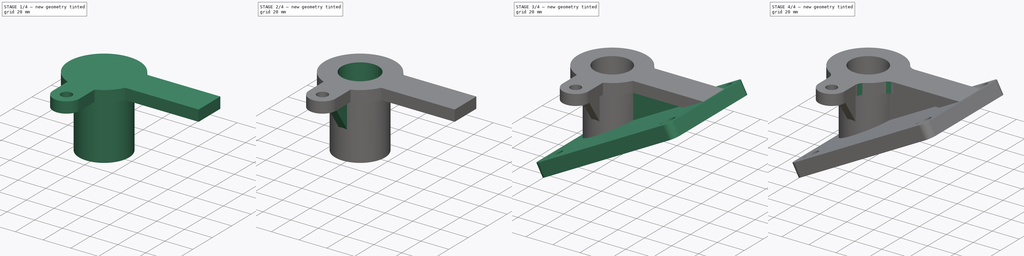
[diagram: build sequence overview — one tinted view per stage of 4, left to right]
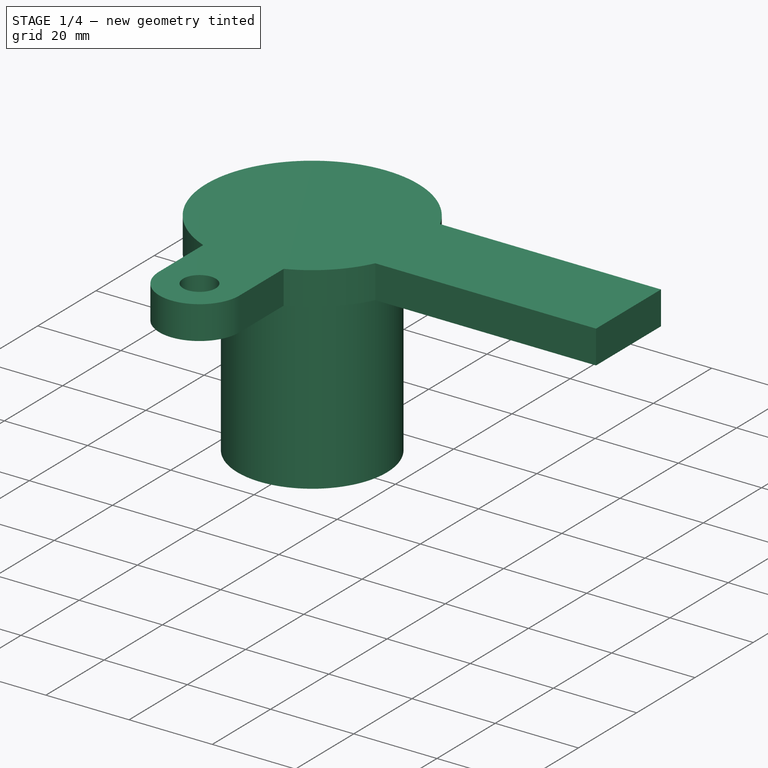
[diagram: stage 1 of 4 — iso view after this stage's code; geometry added in this stage tinted green]
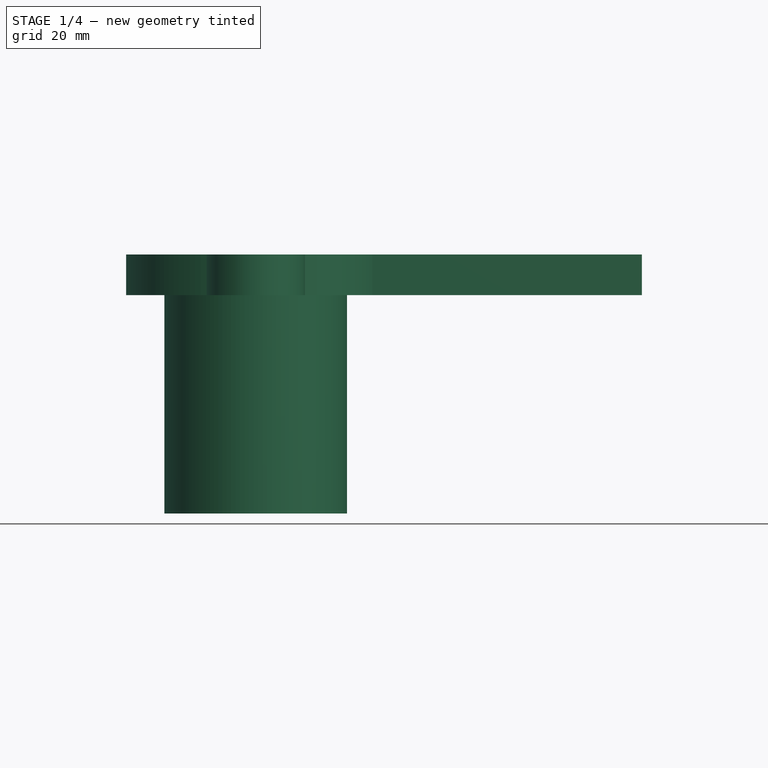
[diagram: stage 1 of 4 — front view after this stage's code; geometry added in this stage tinted green]
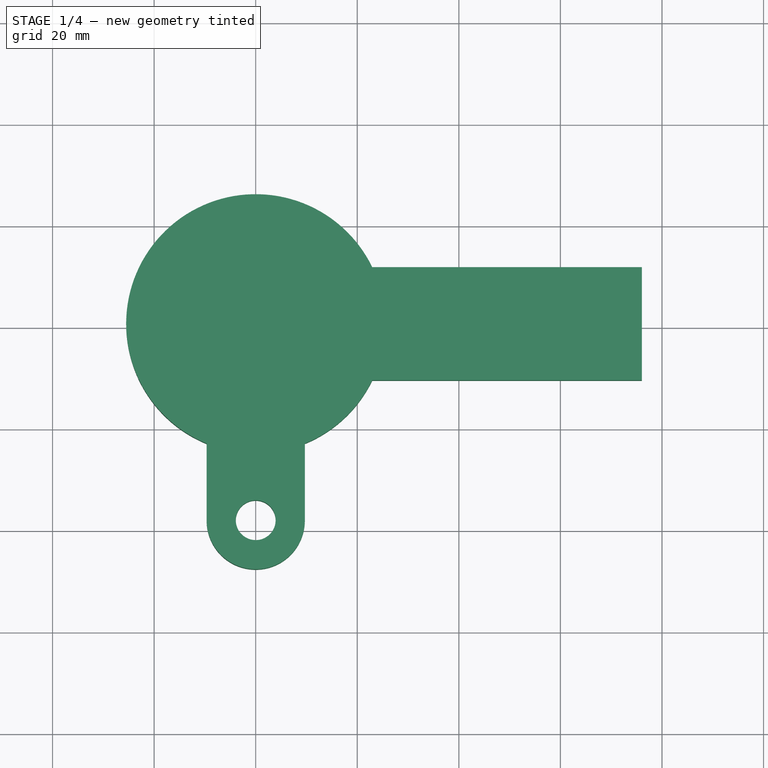
[diagram: stage 1 of 4 — top view after this stage's code; geometry added in this stage tinted green]
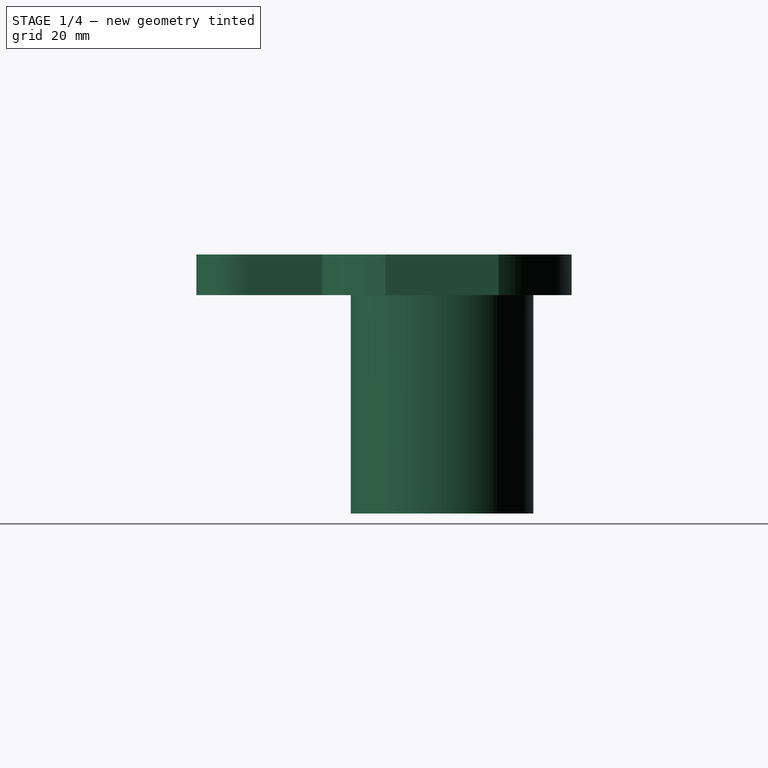
[diagram: stage 1 of 4 — right view after this stage's code; geometry added in this stage tinted green]
FCSTD DOCUMENT  (FreeCAD 0.21R33771 (Git))
Label: ex58
License: All rights reserved
LicenseURL: https://en.wikipedia.org/wiki/All_rights_reserved
objects: Sketcher::SketchObject×7, PartDesign::Pad×5, PartDesign::Pocket×3, PartDesign::Fillet×1, PartDesign::Body×1
note: 26 computed .brp shape members not serialized (recipe doc carries the construction recipe); baked Part::Feature solids carry a one-line shape summary decoded from their .brp

FEATURE [Sketcher::SketchObject] Sketch
  FullyConstrained = false
  MapMode = 5
  Support = -> [XY_Plane]
  sketch-geometry (10):
    g0: ArcOfCircle CenterX=0 CenterY=0 CenterZ=0 NormalX=0 NormalY=0 NormalZ=1 AngleXU=0 Radius=25.5107 StartAngle=0.452188 EndAngle=4.32346
    g1: ArcOfCircle CenterX=0 CenterY=-38.6943 CenterZ=0 NormalX=0 NormalY=0 NormalZ=1 AngleXU=0 Radius=9.67357 StartAngle=3.14159 EndAngle=6.28319
    g2: LineSegment StartX=9.67357 StartY=-38.6943 StartZ=0 EndX=9.67357 EndY=-23.6054 EndZ=0
    g3: Circle CenterX=0 CenterY=-38.6943 CenterZ=0 NormalX=0 NormalY=0 NormalZ=1 AngleXU=0 Radius=3.92073
    g4: LineSegment StartX=76.035 StartY=11.1465 StartZ=0 EndX=76.035 EndY=-11.1465 EndZ=0
    g5: LineSegment StartX=76.035 StartY=-11.1465 StartZ=0 EndX=22.9467 EndY=-11.1465 EndZ=0
    g6: GeomPoint X=0 Y=0 Z=0
    g7: LineSegment StartX=22.9467 StartY=11.1465 StartZ=0 EndX=76.035 EndY=11.1465 EndZ=0
    g8: ArcOfCircle CenterX=0 CenterY=0 CenterZ=0 NormalX=0 NormalY=0 NormalZ=1 AngleXU=0 Radius=25.5107 StartAngle=5.10132 EndAngle=5.831
    g9: LineSegment StartX=-9.67357 StartY=-23.6054 StartZ=0 EndX=-9.67357 EndY=-38.6943 EndZ=0
  constraints (16):
    c: Coincident(g0,g-1)
    c: Coincident(g9,g1) = -1.5708
    c: Tangent(g1,g2) = -1.5708
    c: PointOnObject(g1,g-2)
    c: Coincident(g3,g1)
    c: Coincident(g7,g4)
    c: Coincident(g4,g5)
    c: Horizontal(g5)
    c: Vertical(g4)
    c: Coincident(g6,g0)
    c: Coincident(g0,g7)
    c: Coincident(g5,g8)
    c: Equal(g0,g8)
    c: Coincident(g8,g2)
    c: Coincident(g0,g8)
    c: Coincident(g9,g0)
FEATURE [PartDesign::Pad] Pad
  Direction = (0,0,1)
  Length = 8
  Length2 = 10
  Profile = -> Sketch
  ReferenceAxis = -> Sketch [N_Axis]
  Type = 0
FEATURE [Sketcher::SketchObject] Sketch001
  FullyConstrained = false
  MapMode = 5
  Support = -> [XY_Plane]
  sketch-geometry (2):
    g0: GeomPoint X=0 Y=0 Z=0
    g1: Circle CenterX=0 CenterY=0 CenterZ=0 NormalX=0 NormalY=0 NormalZ=1 AngleXU=0 Radius=17.9846
FEATURE [PartDesign::Pad] Pad001
  BaseFeature = -> Pad
  Direction = (0,0,1)
  Length = 43
  Length2 = 10
  Profile = -> Sketch001
  ReferenceAxis = -> Sketch001 [N_Axis]
  Reversed = true
  Type = 0
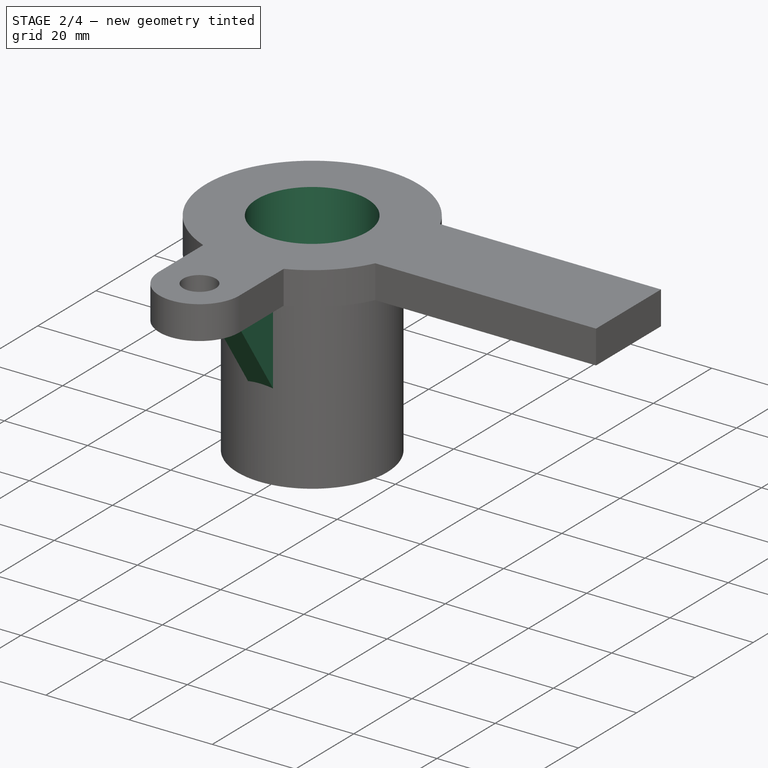
[diagram: stage 2 of 4 — iso view after this stage's code; geometry added in this stage tinted green]
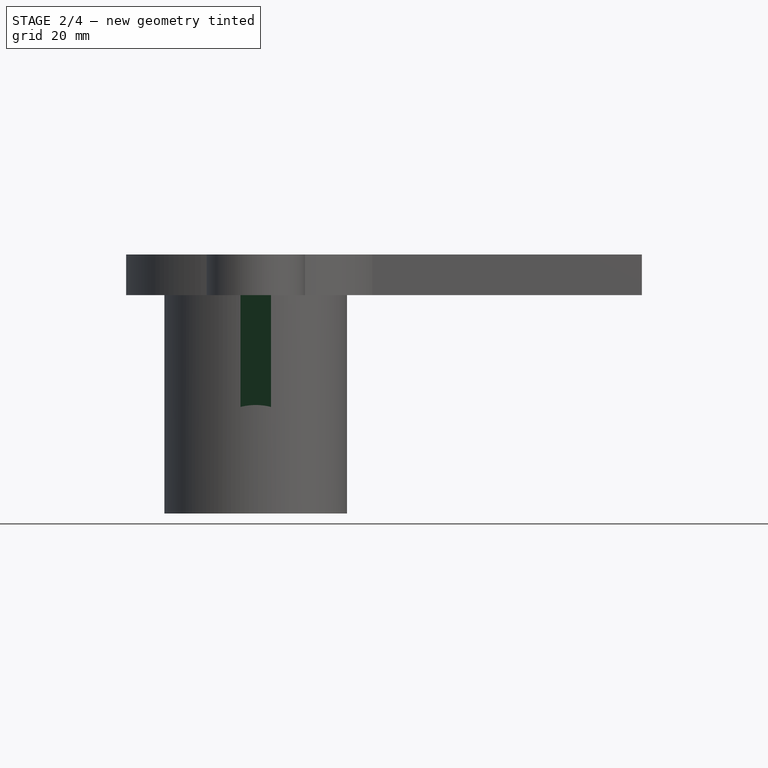
[diagram: stage 2 of 4 — front view after this stage's code; geometry added in this stage tinted green]
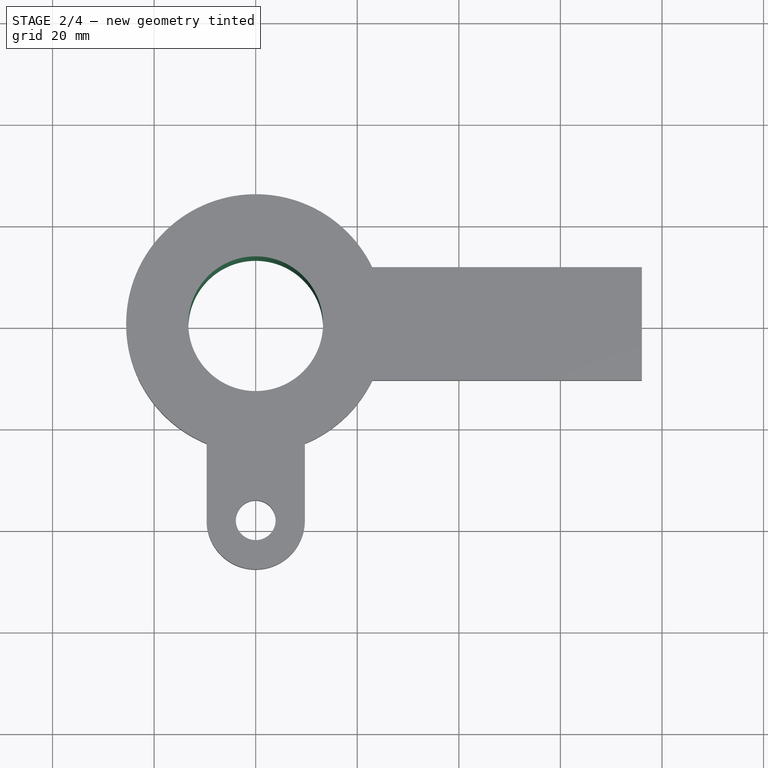
[diagram: stage 2 of 4 — top view after this stage's code; geometry added in this stage tinted green]
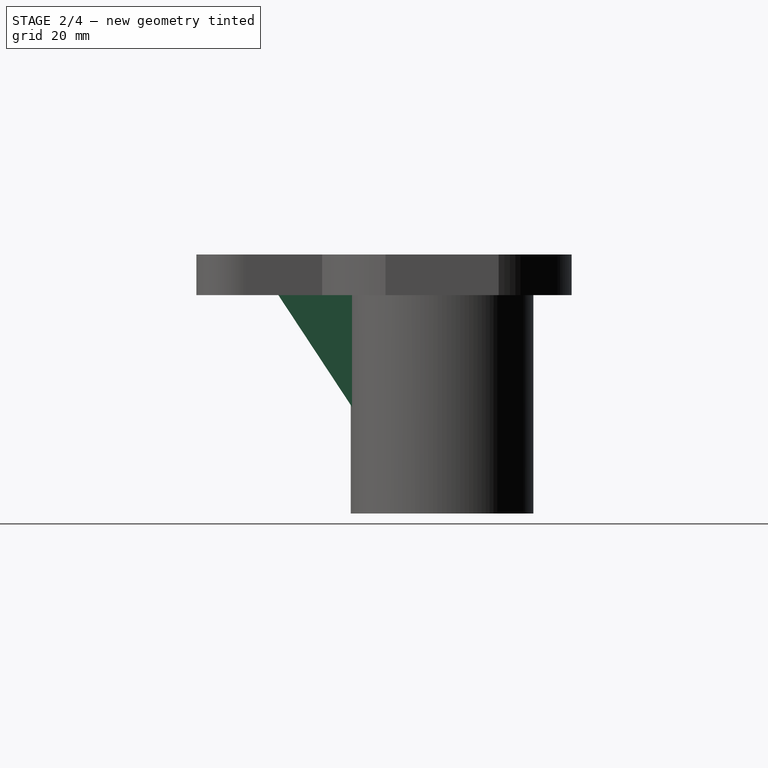
[diagram: stage 2 of 4 — right view after this stage's code; geometry added in this stage tinted green]
FEATURE [Sketcher::SketchObject] Sketch002
  AttachmentOffset = pos=(0,0,8) rot=(0,0,1;0rad)
  FullyConstrained = false
  MapMode = 5
  Placement = pos=(0,0,8) rot=(0,0,1;0rad)
  Support = -> [XY_Plane]
  sketch-geometry (2):
    g0: GeomPoint X=0 Y=0 Z=0
    g1: Circle CenterX=0 CenterY=0 CenterZ=0 NormalX=0 NormalY=0 NormalZ=1 AngleXU=0 Radius=13.2647
FEATURE [PartDesign::Pocket] Pocket
  BaseFeature = -> Pad001
  Direction = (0,0,-1)
  Length = 5
  Length2 = 5
  Profile = -> Sketch002
  ReferenceAxis = -> Sketch002 [N_Axis]
  Type = 1
FEATURE [Sketcher::SketchObject] Sketch003
  FullyConstrained = false
  MapMode = 5
  Placement = pos=(0,0,0) rot=(0.57735,0.57735,0.57735;2.0944rad)
  Support = -> [YZ_Plane]
  sketch-geometry (3):
    g0: LineSegment StartX=-34.1703 StartY=2.94669 StartZ=0 EndX=-15.1204 EndY=3.00086 EndZ=0
    g1: LineSegment StartX=-15.1204 StartY=3.00086 StartZ=0 EndX=-13.7119 EndY=-28.1229 EndZ=0
    g2: LineSegment StartX=-13.7119 StartY=-28.1229 StartZ=0 EndX=-34.1703 EndY=2.94669 EndZ=0
  constraints (3):
    c: Coincident(g2,g0)
    c: Coincident(g1,g2)
    c: PointOnObject(g0,g1)
FEATURE [PartDesign::Pad] Pad002
  BaseFeature = -> Pocket
  Direction = (1,-2e-16,3e-16)
  Length = 6
  Length2 = 10
  Midplane = true
  Profile = -> Sketch003
  ReferenceAxis = -> Sketch003 [N_Axis]
  Type = 0
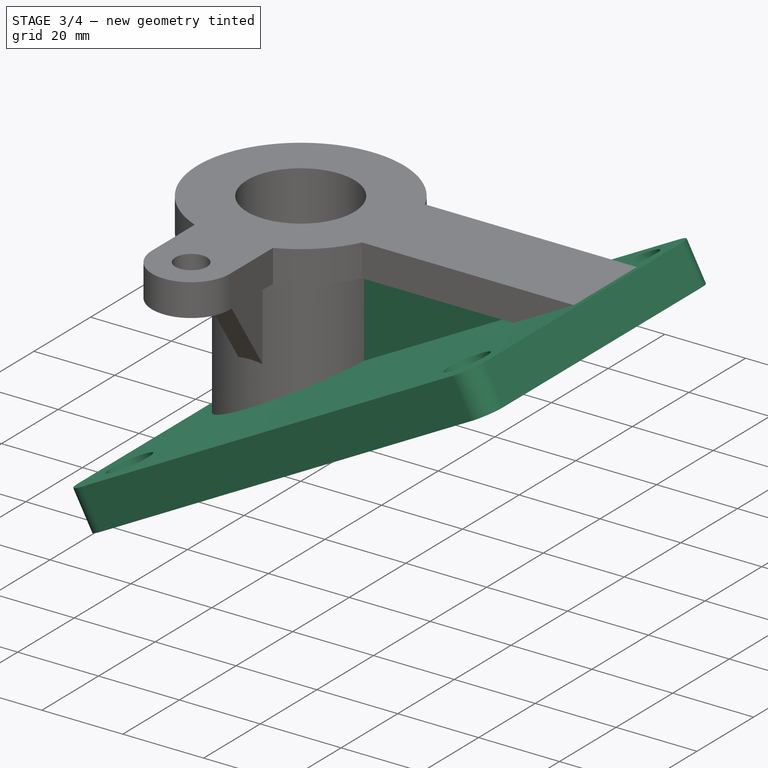
[diagram: stage 3 of 4 — iso view after this stage's code; geometry added in this stage tinted green]
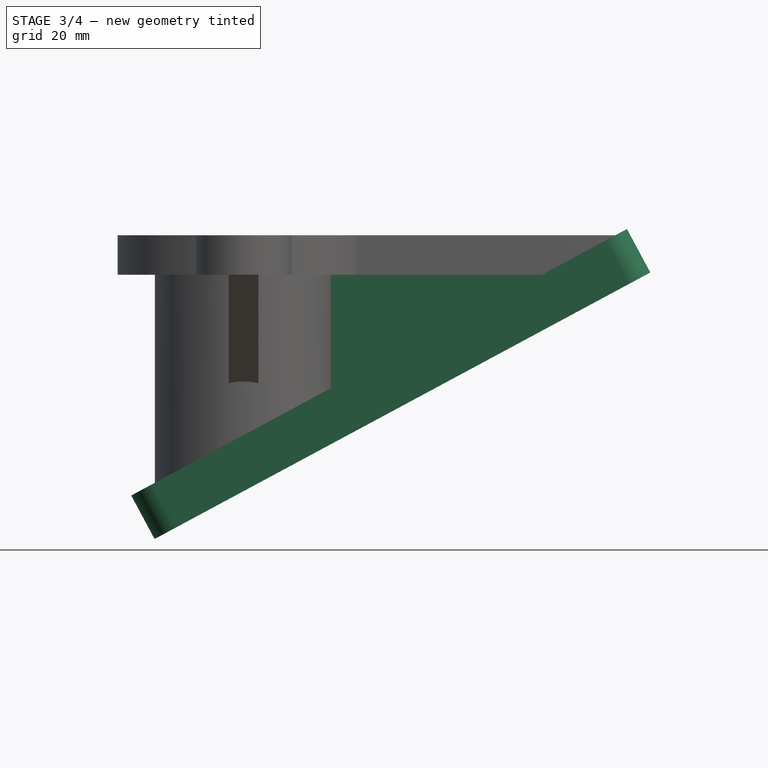
[diagram: stage 3 of 4 — front view after this stage's code; geometry added in this stage tinted green]
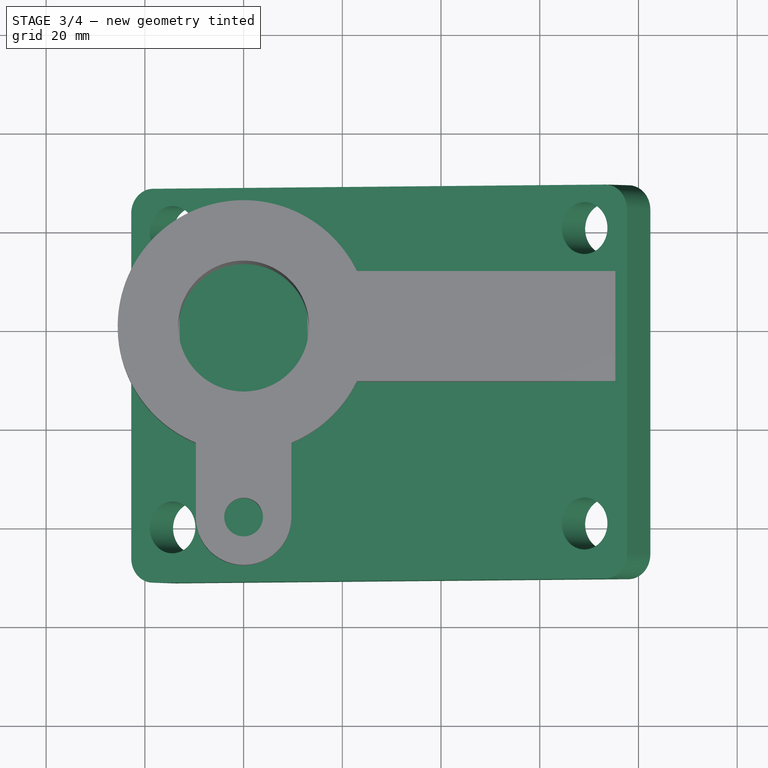
[diagram: stage 3 of 4 — top view after this stage's code; geometry added in this stage tinted green]
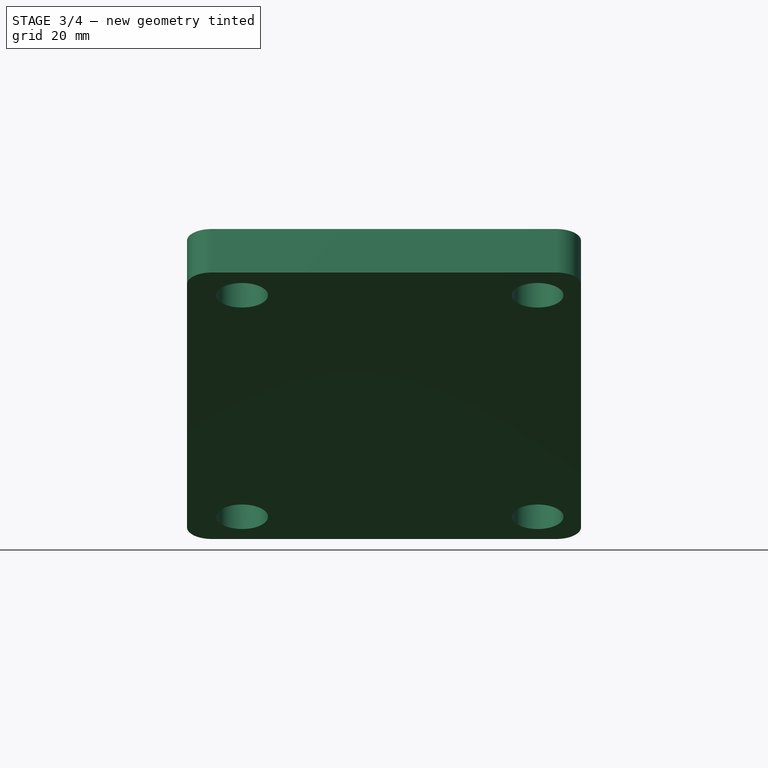
[diagram: stage 3 of 4 — right view after this stage's code; geometry added in this stage tinted green]
FEATURE [Sketcher::SketchObject] Sketch004
  FullyConstrained = false
  MapMode = 5
  Placement = pos=(0,0,0) rot=(1,0,0;1.5708rad)
  Support = -> [XZ_Plane]
  sketch-geometry (4):
    g0: LineSegment StartX=14.8956 StartY=2.55078 StartZ=0 EndX=75.5644 EndY=2.55078 EndZ=0
    g1: LineSegment StartX=75.5644 StartY=2.55078 StartZ=0 EndX=75.5644 EndY=-42.5129 EndZ=0
    g2: LineSegment StartX=75.5644 StartY=-42.5129 StartZ=0 EndX=14.8956 EndY=-42.5129 EndZ=0
    g3: LineSegment StartX=14.8956 StartY=-42.5129 StartZ=0 EndX=14.8956 EndY=2.55078 EndZ=0
  constraints (8):
    c: Coincident(g0,g1)
    c: Coincident(g1,g2)
    c: Coincident(g2,g3)
    c: Coincident(g3,g0)
    c: Horizontal(g0)
    c: Horizontal(g2)
    c: Vertical(g1)
    c: Vertical(g3)
FEATURE [PartDesign::Pad] Pad003
  BaseFeature = -> Pad002
  Direction = (0,-1,2e-16)
  Length = 6
  Length2 = 10
  Midplane = true
  Profile = -> Sketch004
  ReferenceAxis = -> Sketch004 [N_Axis]
  Type = 0
FEATURE [Sketcher::SketchObject] Sketch005
  FullyConstrained = false
  MapMode = 5
  Placement = pos=(0,0,0) rot=(1,0,0;1.5708rad)
  Support = -> [XZ_Plane]
  sketch-geometry (3):
    g0: LineSegment StartX=83.3129 StartY=12.2892 StartZ=0 EndX=-26.0874 EndY=-46.5181 EndZ=0
    g1: LineSegment StartX=-26.0874 StartY=-46.5181 StartZ=0 EndX=88.1799 EndY=-46.5181 EndZ=0
    g2: LineSegment StartX=88.1799 StartY=-46.5181 StartZ=0 EndX=83.3129 EndY=12.2892 EndZ=0
  constraints (4):
    c: Horizontal(g1)
    c: Coincident(g2,g0)
    c: Coincident(g1,g0)
    c: Coincident(g2,g1)
FEATURE [PartDesign::Pocket] Pocket001
  BaseFeature = -> Pad003
  Direction = (0,1,-2e-16)
  Length = 5
  Length2 = 5
  Midplane = true
  Profile = -> Sketch005
  ReferenceAxis = -> Sketch005 [N_Axis]
  Type = 1
FEATURE [Sketcher::SketchObject] Sketch006
  FullyConstrained = false
  MapMode = 5
  Placement = pos=(13.5517,-5.6e-15,-25.2104) rot=(0.969745,0,0.244122;3.14159rad)
  Support = -> [Pocket001]
  sketch-geometry (18):
    g0: ArcOfCircle CenterX=67.7913 CenterY=46.1249 CenterZ=0 NormalX=0 NormalY=0 NormalZ=1 AngleXU=0 Radius=5 StartAngle=-9e-16 EndAngle=1.5708
    g1: LineSegment StartX=72.7913 StartY=46.1249 StartZ=0 EndX=72.7913 EndY=-23.6926 EndZ=0
    g2: ArcOfCircle CenterX=67.7913 CenterY=-23.6926 CenterZ=0 NormalX=0 NormalY=0 NormalZ=1 AngleXU=0 Radius=5 StartAngle=4.71239 EndAngle=6.28319
    g3: LineSegment StartX=67.7913 StartY=-28.6926 StartZ=0 EndX=-36.2336 EndY=-28.6926 EndZ=0
    g4: ArcOfCircle CenterX=-36.2336 CenterY=-23.6926 CenterZ=0 NormalX=0 NormalY=0 NormalZ=1 AngleXU=0 Radius=5 StartAngle=3.14159 EndAngle=4.71239
    g5: LineSegment StartX=-41.2336 StartY=-23.6926 StartZ=0 EndX=-41.2336 EndY=46.1249 EndZ=0
    g6: ArcOfCircle CenterX=-36.2336 CenterY=46.1249 CenterZ=0 NormalX=0 NormalY=0 NormalZ=1 AngleXU=0 Radius=5 StartAngle=1.5708 EndAngle=3.14159
    g7: LineSegment StartX=-36.2336 StartY=51.1249 StartZ=0 EndX=67.7913 EndY=51.1249 EndZ=0
    g8: GeomPoint X=72.7913 Y=51.1249 Z=0
    g9: GeomPoint X=-41.2336 Y=-28.6926 Z=0
    g10: Circle CenterX=-31.7315 CenterY=39.9599 CenterZ=0 NormalX=0 NormalY=0 NormalZ=1 AngleXU=0 Radius=5.2477
    g11: Circle CenterX=63.0517 CenterY=39.9599 CenterZ=0 NormalX=0 NormalY=0 NormalZ=1 AngleXU=0 Radius=5.2477
    g12: Circle CenterX=-31.7315 CenterY=-19.9031 CenterZ=0 NormalX=0 NormalY=0 NormalZ=1 AngleXU=0 Radius=5.2477
    g13: Circle CenterX=63.0517 CenterY=-19.9031 CenterZ=0 NormalX=0 NormalY=0 NormalZ=1 AngleXU=0 Radius=5.2477
    g14: LineSegment StartX=-31.7315 StartY=39.9599 StartZ=0 EndX=63.0517 EndY=39.9599 EndZ=0
    g15: LineSegment StartX=63.0517 StartY=39.9599 StartZ=0 EndX=63.0517 EndY=-19.9031 EndZ=0
    g16: LineSegment StartX=63.0517 StartY=-19.9031 StartZ=0 EndX=-31.7315 EndY=-19.9031 EndZ=0
    g17: LineSegment StartX=-31.7315 StartY=-19.9031 StartZ=0 EndX=-31.7315 EndY=39.9599 EndZ=0
  constraints (35):
    c: Tangent(g0,g1) = 1.5708
    c: Tangent(g1,g2) = 1.5708
    c: Tangent(g2,g3) = 1.5708
    c: Tangent(g3,g4) = 1.5708
    c: Tangent(g4,g5) = 1.5708
    c: Tangent(g5,g6) = 1.5708
    c: Tangent(g6,g7) = 1.5708
    c: Tangent(g7,g0) = 1.5708
    c: Horizontal(g3)
    c: Horizontal(g7)
    c: Vertical(g1)
    c: Vertical(g5)
    c: Equal(g0,g2)
    c: Equal(g2,g4)
    c: Equal(g4,g6)
    c: PointOnObject(g8,g1)
    c: PointOnObject(g8,g7)
    c: PointOnObject(g9,g3)
    c: PointOnObject(g9,g5)
    c: Radius(g6) = 5
    c: Equal(g11,g10)
    c: Equal(g10,g12)
    c: Equal(g12,g13)
    c: Coincident(g14,g15)
    c: Coincident(g15,g16)
    c: Coincident(g16,g17)
    c: Coincident(g17,g14)
    c: Horizontal(g14)
    c: Horizontal(g16)
    c: Vertical(g15)
    c: Vertical(g17)
    c: Coincident(g14,g10)
    c: Coincident(g15,g13)
    c: Coincident(g14,g11)
    c: Coincident(g12,g16)
FEATURE [PartDesign::Pad] Pad004
  BaseFeature = -> Pocket001
  Direction = (0.473472,-2e-16,-0.880809)
  Length = 10
  Length2 = 10
  Profile = -> Sketch006
  ReferenceAxis = -> Sketch006 [N_Axis]
  Type = 0
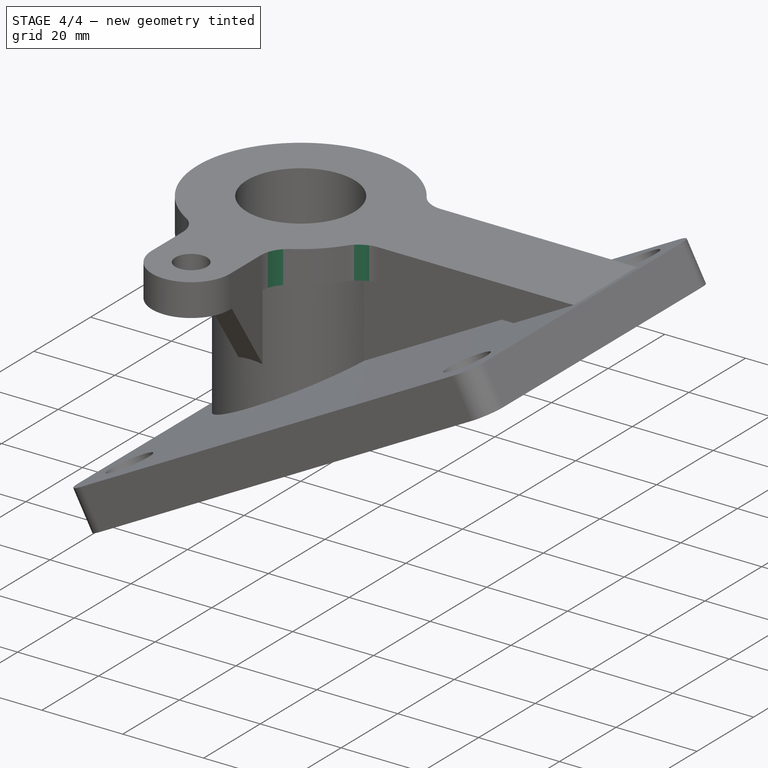
[diagram: stage 4 of 4 — iso view after this stage's code; geometry added in this stage tinted green]
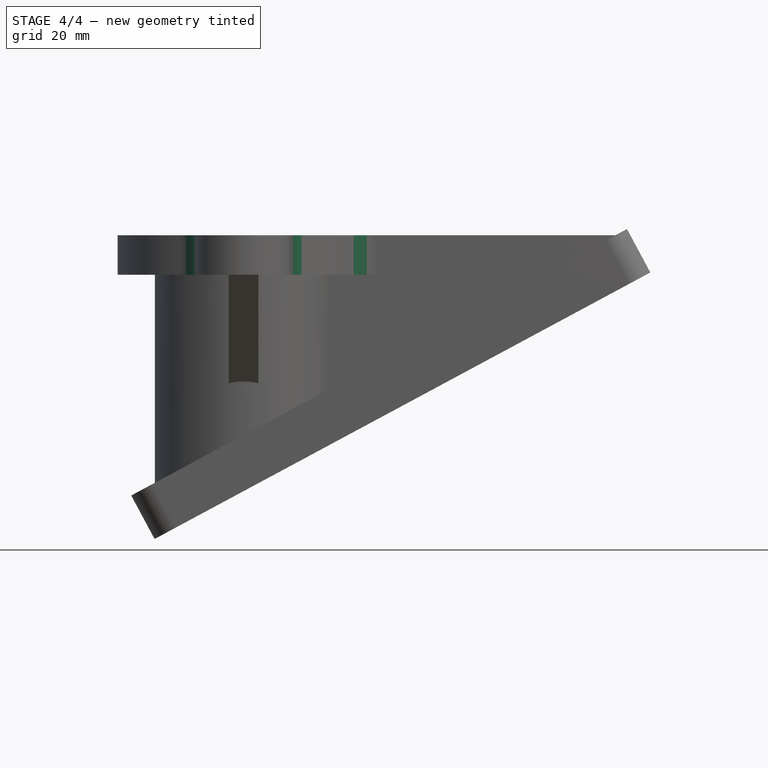
[diagram: stage 4 of 4 — front view after this stage's code; geometry added in this stage tinted green]
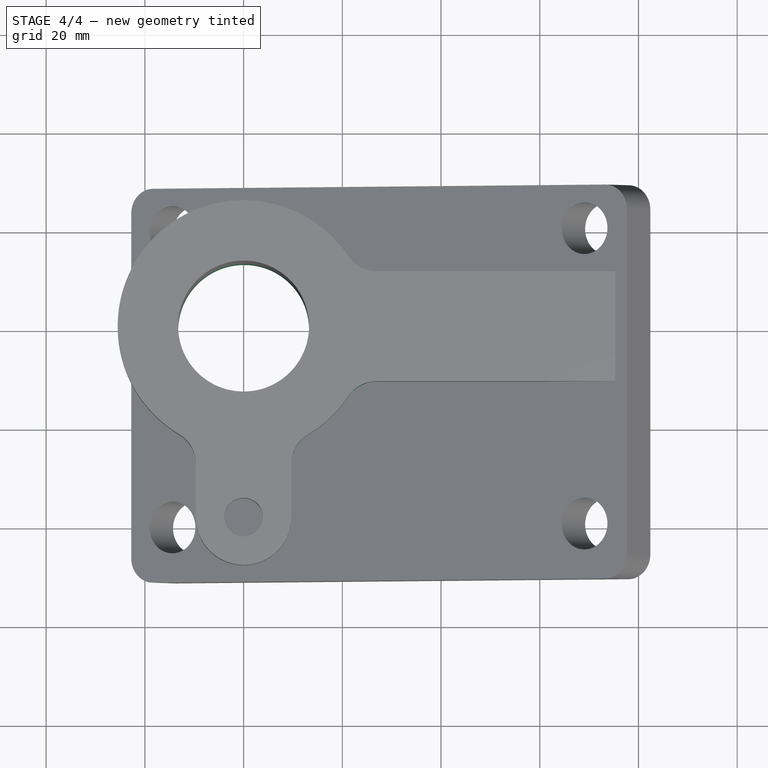
[diagram: stage 4 of 4 — top view after this stage's code; geometry added in this stage tinted green]
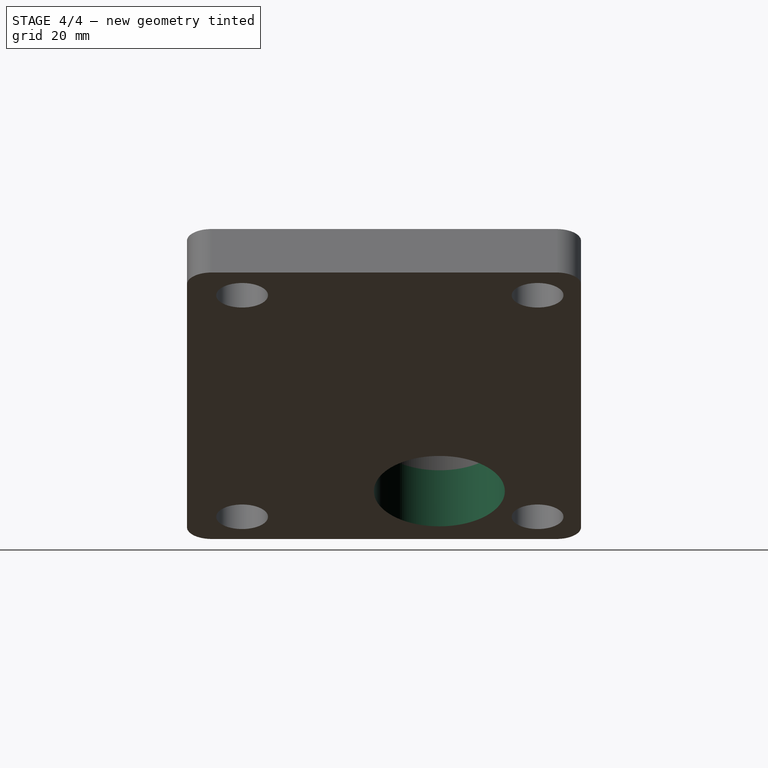
[diagram: stage 4 of 4 — right view after this stage's code; geometry added in this stage tinted green]
FEATURE [PartDesign::Pocket] Pocket002
  BaseFeature = -> Pad004
  Direction = (0,0,-1)
  Length = 5
  Length2 = 5
  Profile = -> Pad004 [Edge73]
  Type = 1
FEATURE [PartDesign::Fillet] Fillet
  Base = -> Pocket002 [Edge65,Edge75,Edge81,Edge84]
  BaseFeature = -> Pocket002
  Radius = 7
  SupportTransform = false
  UseAllEdges = false
FEATURE [PartDesign::Body] Body
  Group = -> [Sketch,Pad,Sketch001,Pad001,Sketch002,Pocket,Sketch003,Pad002,Sketch004,Pad003,Sketch005,Pocket001,Sketch006,Pad004,Pocket002,Fillet]
  Origin = -> Origin
  Tip = -> Fillet
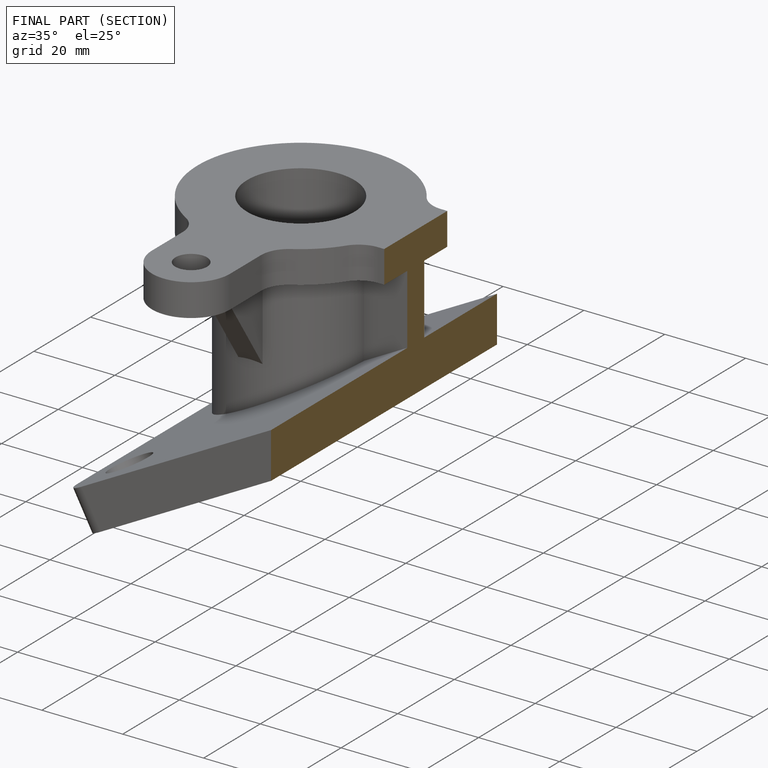
[diagram: finished part — half-section view (interior)]
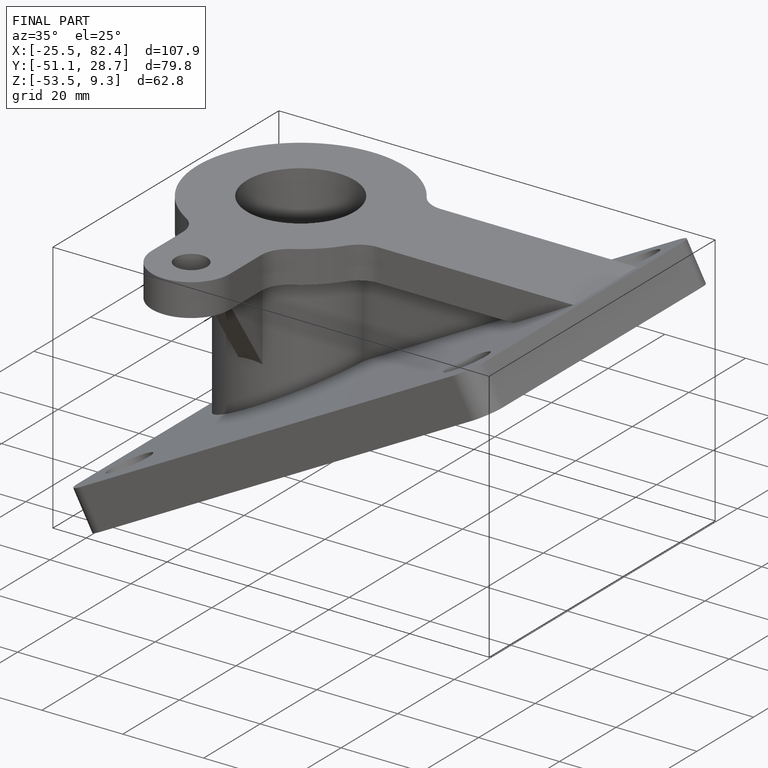
[diagram: finished part — iso view with bounding-box wireframe]
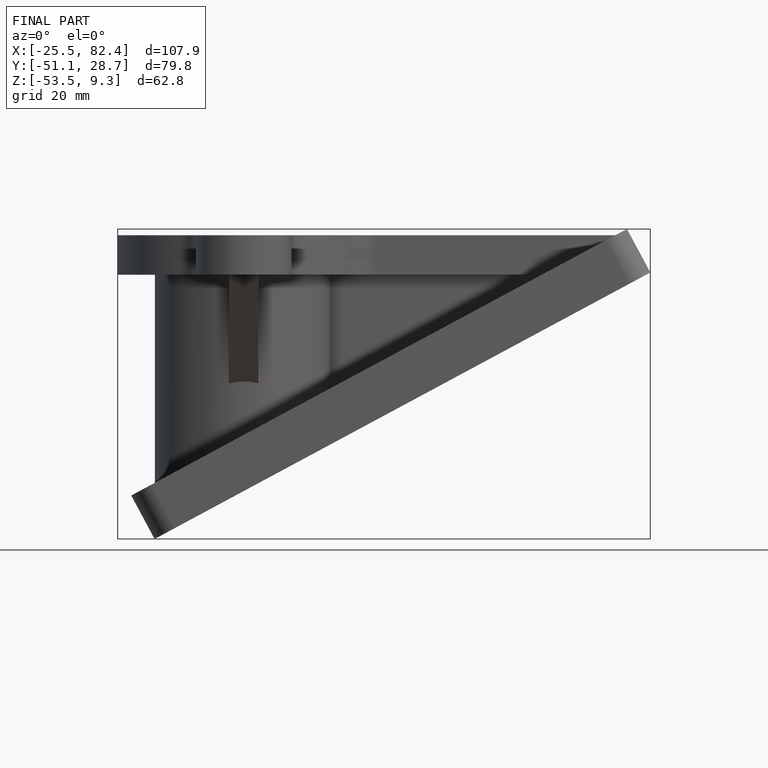
[diagram: finished part — front view with bounding-box wireframe]
